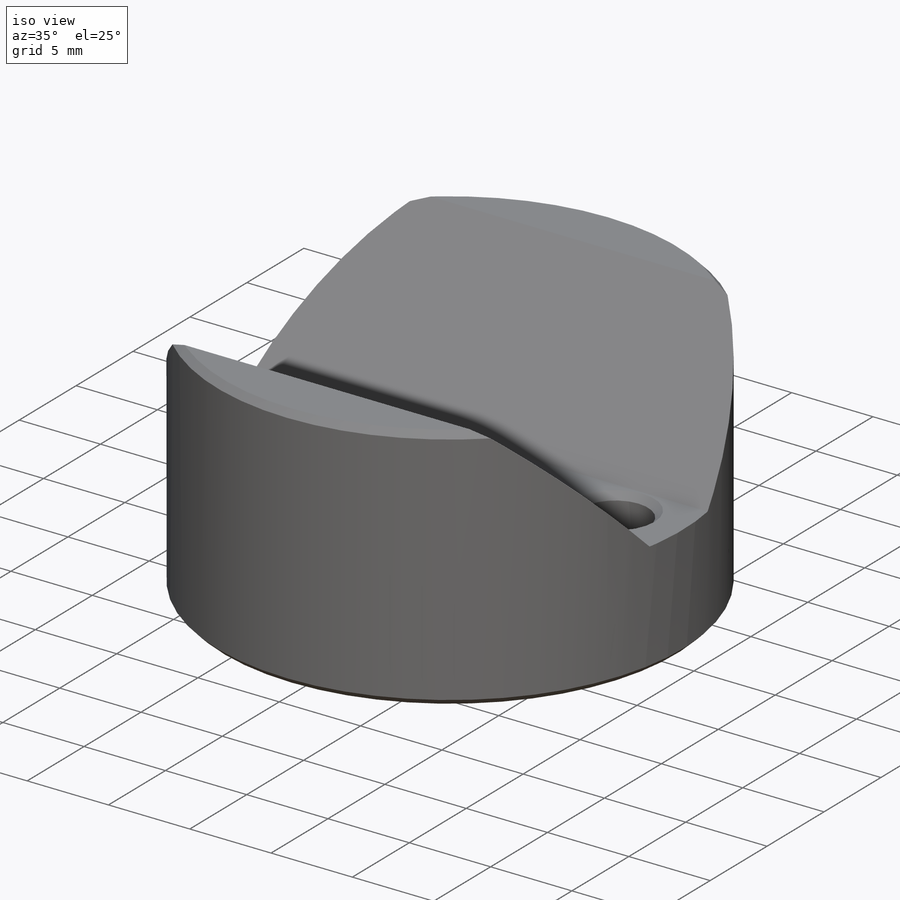
[diagram: iso view]
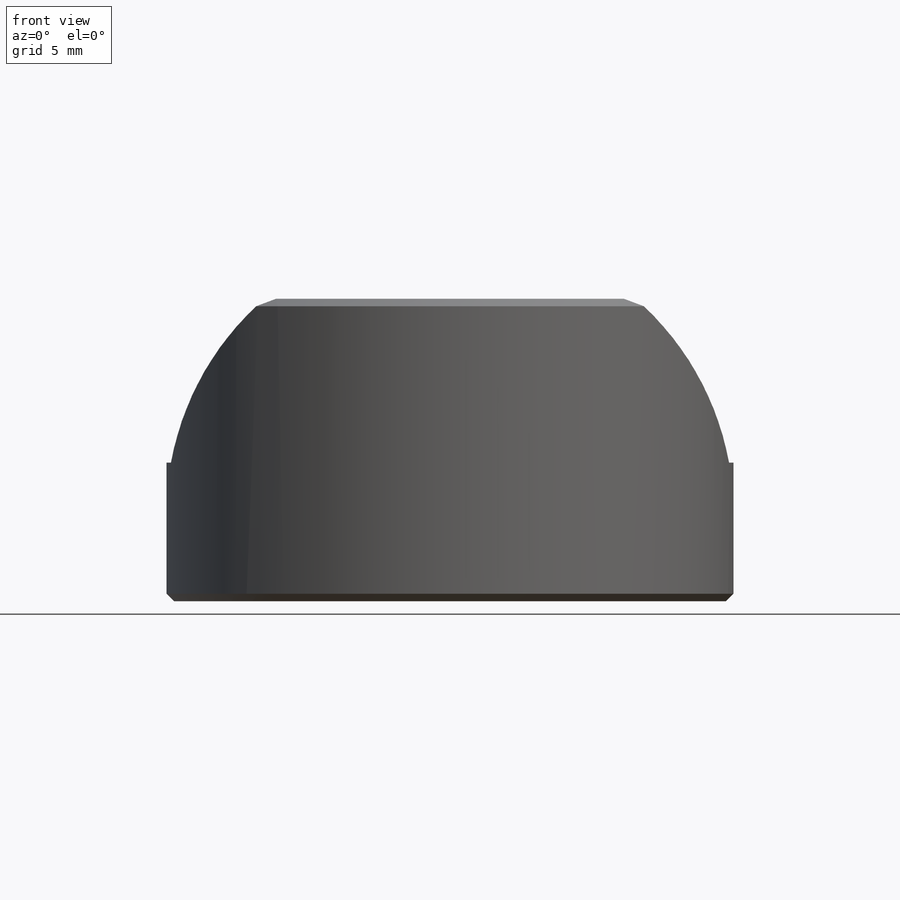
[diagram: front view]
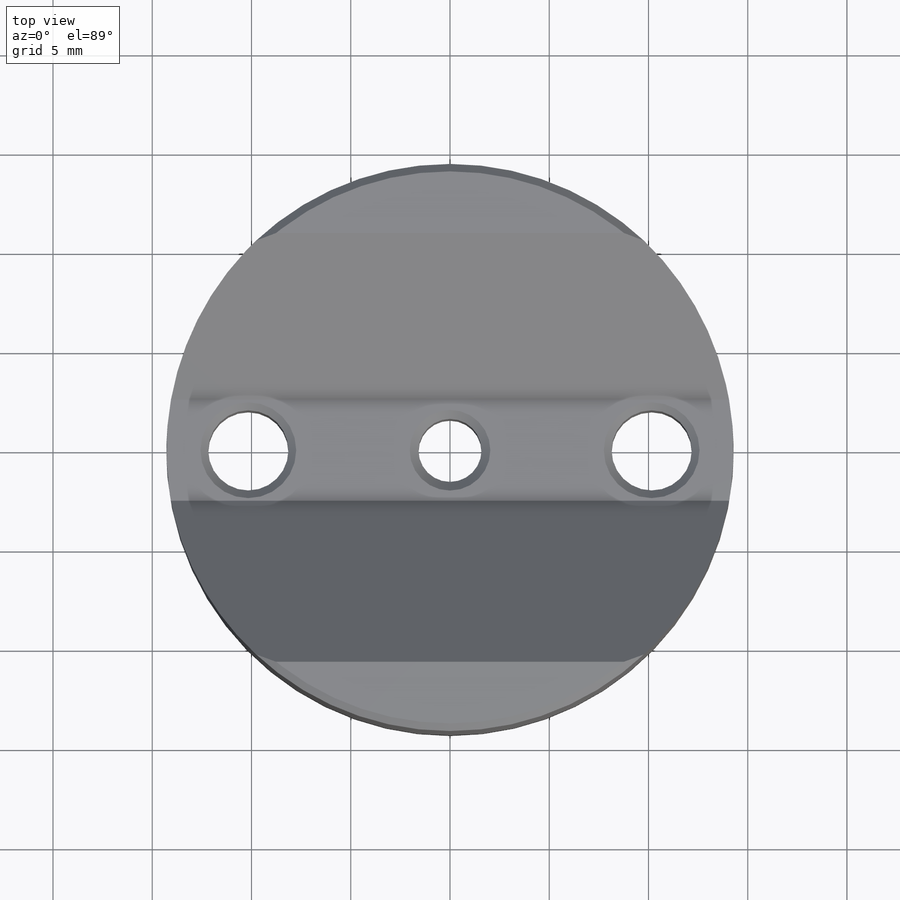
[diagram: top view]
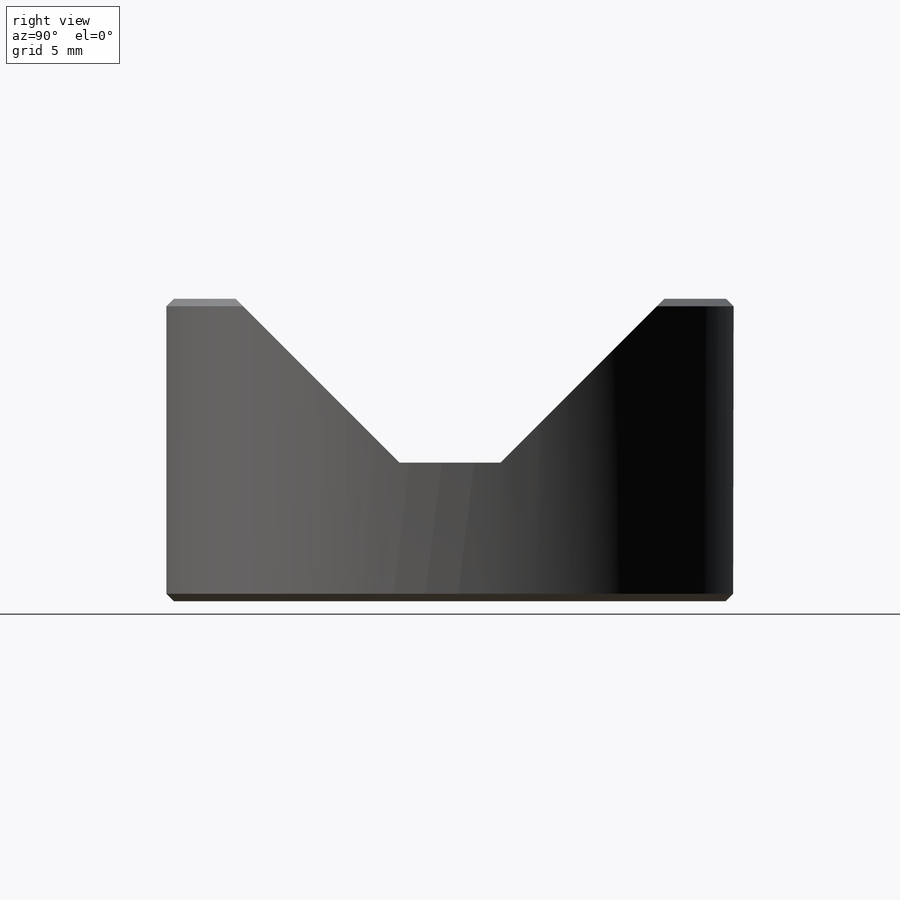
[diagram: right view]
SOLIDWORKS PART (.sldprt)
format: sldprt  version: not decoded by parser v0  size: 201,216 bytes
history: native  units: mm
features: sketch x6, plane x3, chamfer x3, cut_extrude x2, thread x2, material x1, extrude x1, hole x1, cut_revolve x1 + 2 further entries (+9 scaffold rows collapsed)
feature tree (31):
  scaffold x9  (default folders/planes/origin — collapsed)
  material  "Material <not specified>"
  plane  "Plane X-Y"
  plane  "Plane X-Z"
  plane  "Plane Y-Z"
  "Axis - Y"
  "Axis - Z"
  sketch  "Sketch1"  dims[D1=28.575mm]
  extrude  "Extrude1"  Depth=15.24mm
  sketch  "Sketch3"  dims[c1.D3=25.4mm c1.D4=25.4mm c1.D6=19.05mm c1.D7=15.875mm c1.D9=15.875mm c1.D1=~21.606768mm c1.D2=6.985mm c2.D4=~35.097128mm c2.D5=~5.096768mm c2.D8=27.432mm c2.D9=~23.599436mm]
  cut_extrude  "Cut-Extrude1"  [1 undecoded]
  hole  "Tap Drill for #10 Tap1"  Diameter=4.0386mm Depth=15.24mm
  sketch  "Sketch5"  dims[D1=20.32mm]
  sketch  "Sketch4"  dims[hole-wizard template sketch: 59 standard entries collapsed; hole parameters kept: c18.Thru Hole Dia.=4.0386mm c18.Thru Hole Depth=15.24mm]
  thread  "Cosmetic Thread1"  Diameter=4.826mm  [1 undecoded]
  thread  "Cosmetic Thread2"  Diameter=4.826mm  [1 undecoded]
  chamfer  "Chamfer1"  Distance=0.3937mm Angle=45deg
  sketch  "Sketch6"  dims[D1=12.7mm]
  cut_extrude  "Cut-Extrude2"  Depth=0.635mm
  chamfer  "Chamfer2"  Distance=0.635mm Angle=45deg
  sketch  "Sketch9"  dims[c1.D1=3.175mm c1.D2=~7.007068mm c2.D2=45.0deg c2.D3=4.064mm c2.D4=3.81mm]
  cut_revolve  "Cut-Revolve1"  Angle=360deg
  chamfer  "Chamfer3"  Distance=0.381mm Angle=45deg
decode coverage: 15 of 16 modeling features carry decoded parameters; 2 rows unclassified (native names shown)
note: ~ marks probable driven/reference dimensions
note: 3 parameter values undecoded
note: suppression state not decoded; provenance and decode notes live in map.json
